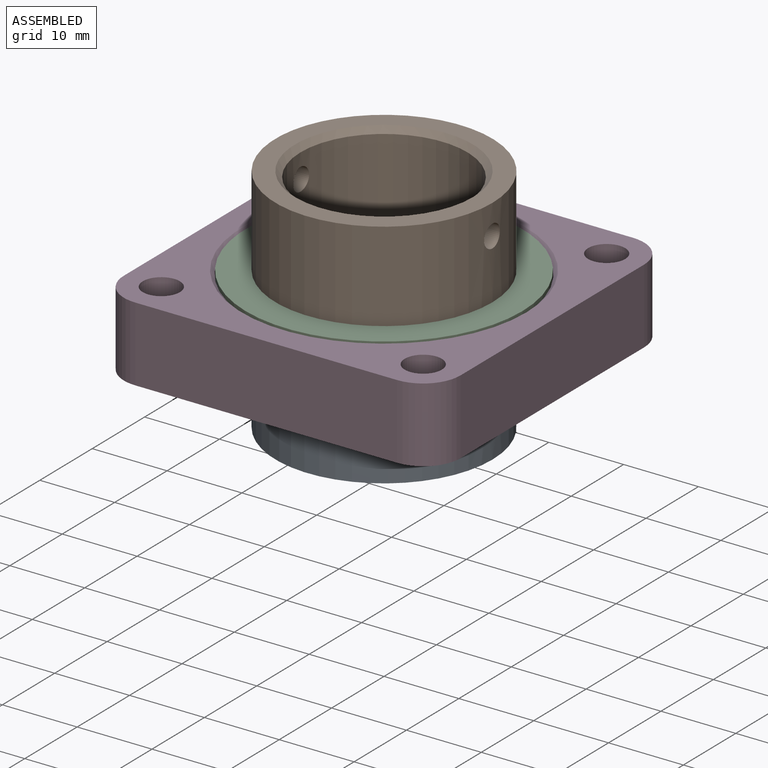
[diagram: assembled view]
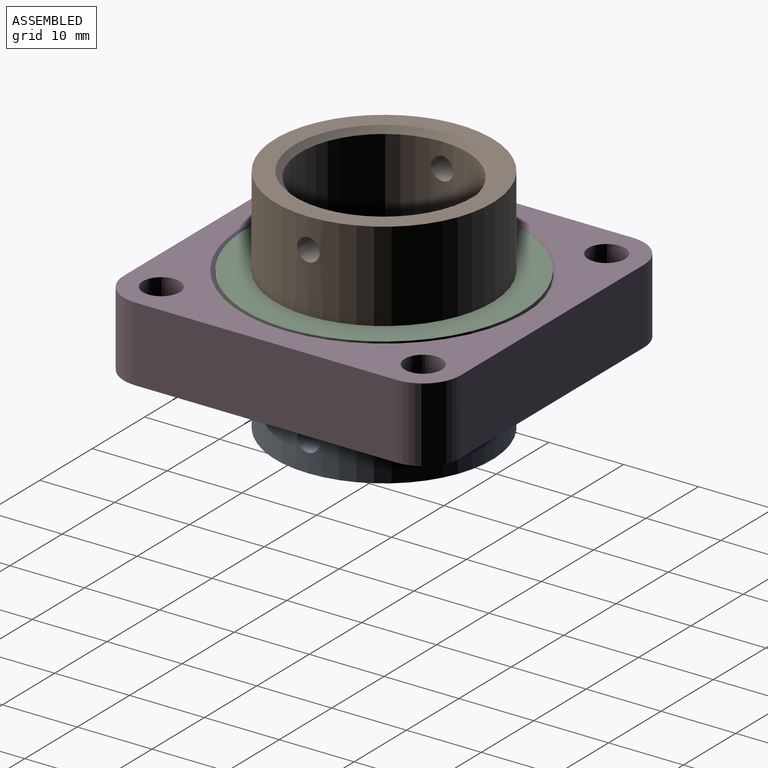
[diagram: assembled view, second angle]
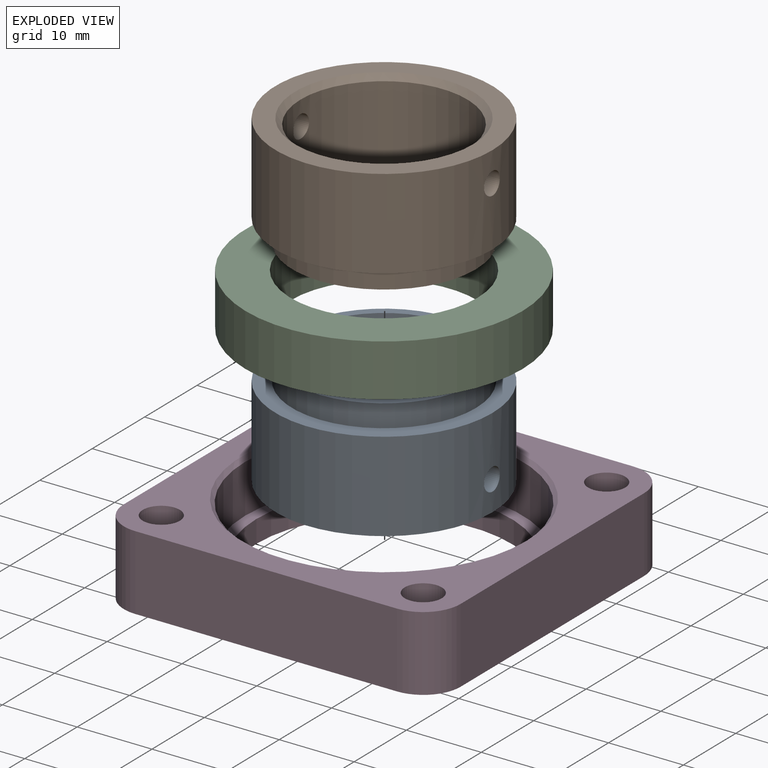
[diagram: exploded view]
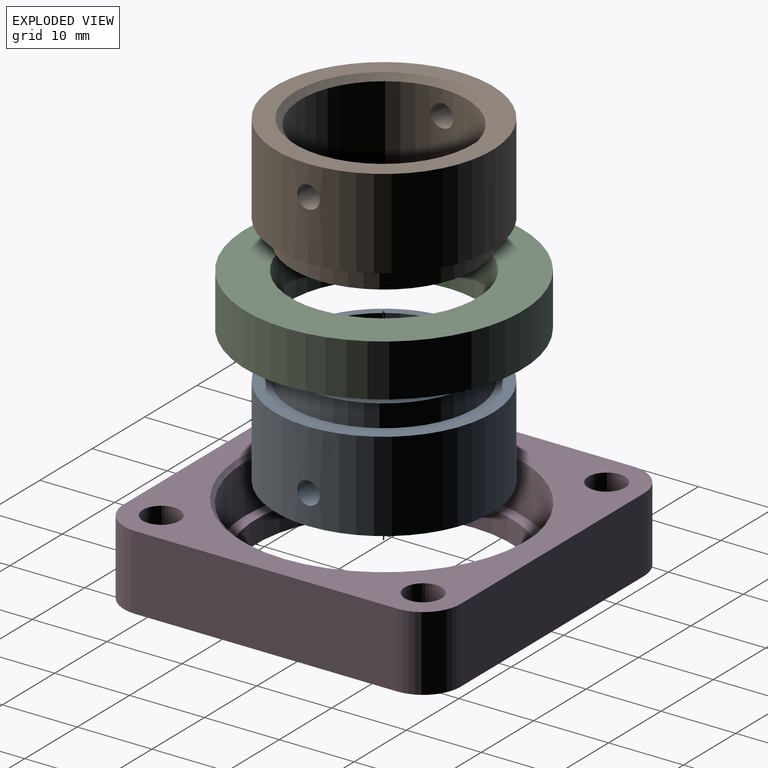
[diagram: exploded view, second angle]
ASSEMBLY  parts=4 mates=3
PART A: 9 faces, bbox 29x29x15 mm
  f0: cylinder r=14.5mm len=29mm, axis (0,0,1), area 1079.1mm2, adj f2,f3,f6,f7
  f1: cylinder r=11.15mm len=22.3mm, axis (0,0,1), area 984.1mm2, adj f5,f6,f7,f8
  f2: plane 29x29mm, normal (0,0,-1), area 215.6mm2, adj f0,f8
  f3: plane 29x29mm, normal (0,0,1), area 187.2mm2, adj f0,f4
  f4: cylinder r=12.27mm len=24.55mm, axis (0,0,-1), area 231.4mm2, adj f3,f5
  f5: plane 24.55x24.55mm, normal (0,0,1), area 82.8mm2, adj f1,f4
  f6: cylinder r=1.5mm len=3.45mm, axis (1,0,0), area 31.7mm2, adj f0,f1
  f7: cylinder r=1.5mm len=3.45mm, axis (1,0,0), area 31.7mm2, adj f0,f1
  f8: cone r=11.9mm half-angle=45deg, axis (0,0,-1), area 76.8mm2, adj f1,f2
PART B: same geometry as A
PART C: 4 faces, bbox 37x37x7 mm
  f0: cylinder r=12.5mm len=25mm, axis (0,0,-1), area 549.8mm2, adj f2,f3
  f1: cylinder r=18.5mm len=37mm, axis (0,0,-1), area 813.7mm2, adj f2,f3
  f2: plane 37x37mm, normal (0,0,1), area 584.3mm2, adj f0,f1
  f3: plane 37x37mm, normal (0,0,-1), area 584.3mm2, adj f0,f1
PART D: 18 faces, bbox 45x45x10 mm
  f0: plane 35x10mm, normal (0,1,0), area 350mm2, adj f1,f12,f13,f14
  f1: cylinder r=5mm len=10mm, axis (0,0,-1), area 78.5mm2, adj f0,f2,f13,f14
  f2: plane 35x10mm, normal (-1,0,0), area 350mm2, adj f1,f3,f13,f14
  f3: cylinder r=5mm len=10mm, axis (0,0,-1), area 78.5mm2, adj f2,f4,f13,f14
  f4: plane 35x10mm, normal (0,-1,0), area 350mm2, adj f3,f5,f13,f14
  f5: cylinder r=5mm len=10mm, axis (0,0,-1), area 78.5mm2, adj f4,f6,f13,f14
  f6: plane 35x10mm, normal (1,0,0), area 350mm2, adj f5,f12,f13,f14
  f7: cylinder r=18.55mm len=37.1mm, axis (0,0,-1), area 757.6mm2, adj f16,f17
  f8: cylinder r=2.47mm len=10mm, axis (0,0,-1), area 155.5mm2, adj f13,f14
  f9: cylinder r=2.47mm len=10mm, axis (0,0,-1), area 155.5mm2, adj f13,f14
  f10: cylinder r=2.47mm len=10mm, axis (0,0,-1), area 155.5mm2, adj f13,f14
  f11: cylinder r=2.47mm len=10mm, axis (0,0,-1), area 155.5mm2, adj f13,f14
  f12: cylinder r=5mm len=10mm, axis (0,0,-1), area 78.5mm2, adj f0,f6,f13,f14
  f13: plane 45x45mm, normal (0,0,1), area 786.5mm2, adj f0,f1,f2,f3,f4,f5,f6,f8
  f14: plane 45x45mm, normal (0,0,-1), area 1013.3mm2, adj f0,f1,f2,f3,f4,f5,f6,f8
  f15: cylinder r=17.05mm len=34.1mm, axis (0,0,-1), area 321.4mm2, adj f14,f16
  f16: plane 37.1x37.1mm, normal (0,0,1), area 167.8mm2, adj f7,f15
  f17: cone r=18.55mm half-angle=45deg, axis (0,0,1), area 83.5mm2, adj f7,f13
PLACE A at identity
PLACE B rot(axis=(1,0,0),180deg) t=(0,0,107)mm
PLACE C at identity
PLACE D t=(0,0,-3)mm
MATE revolute D.f7 <-> C.f0  axis (0,0,1) through (0,0,50)mm
MATE fastened A.f0 <-> C.f0  axis (0,0,1) through (0,0,50)mm
MATE fastened B.f0 <-> C.f0  axis (0,0,-1) through (0,0,57)mm
